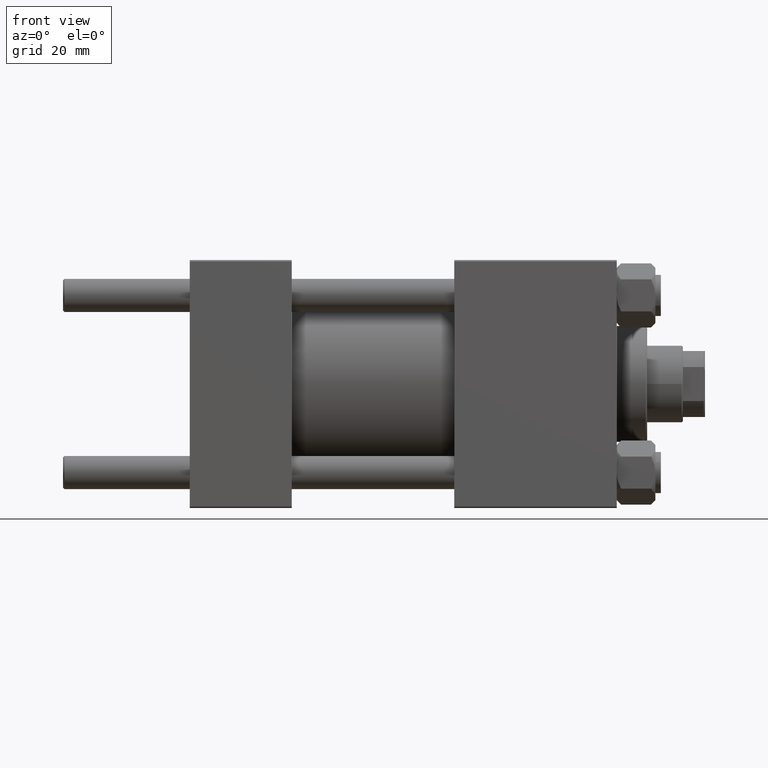
[diagram: clean part render]
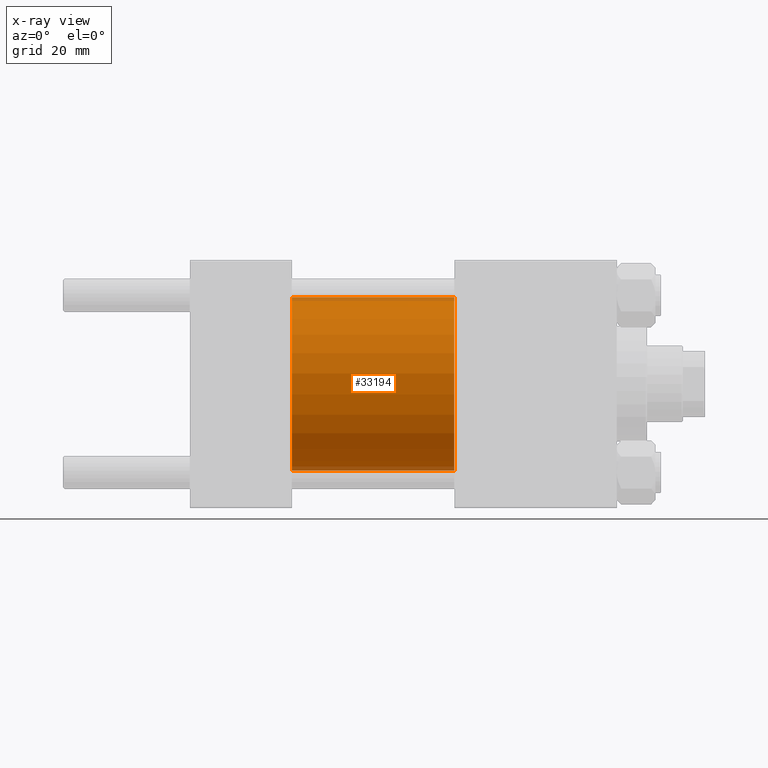
[diagram: x-ray — body ghosted, one internal face saturated and labeled with its STEP entity id]
A machine part, front view, then the same camera in x-ray: the body is ghosted and one INTERNAL B-rep face — a face not visible from any outside direction — is saturated and labeled: STEP entity #33194.
In plain terms, the highlighted cylindrical surface (partial cylindrical patch) has radius 31.5 mm, axis along (-1, -0, -0).
Its self-contained STEP definition (entity closure, byte-faithful):
#318 = CIRCLE ( 'NONE', #28448, 31.50000000000000000 ) ;
#2319 = DIRECTION ( 'NONE',  ( 1.000000000000000000, 0.000000000000000000, 0.000000000000000000 ) ) ;
#2745 = ORIENTED_EDGE ( 'NONE', *, *, #27034, .T. ) ;
#2936 = DIRECTION ( 'NONE',  ( 0.000000000000000000, 0.000000000000000000, 1.000000000000000000 ) ) ;
#5404 = CARTESIAN_POINT ( 'NONE',  ( 96.00000000000000000, 0.000000000000000000, 0.000000000000000000 ) ) ;
#5788 = DIRECTION ( 'NONE',  ( -1.000000000000000000, -0.000000000000000000, -0.000000000000000000 ) ) ;
#8429 = AXIS2_PLACEMENT_3D ( 'NONE', #45725, #41455, #2936 ) ;
#10859 = EDGE_CURVE ( 'NONE', #29247, #48526, #16403, .T. ) ;
#11230 = FACE_OUTER_BOUND ( 'NONE', #29845, .T. ) ;
#13261 = CIRCLE ( 'NONE', #20463, 31.50000000000000000 ) ;
#16012 = CARTESIAN_POINT ( 'NONE',  ( 96.00000000000000000, 3.857637417314162689E-15, -31.50000000000000000 ) ) ;
#16403 = LINE ( 'NONE', #39315, #49767 ) ;
#16733 = DIRECTION ( 'NONE',  ( 0.000000000000000000, 0.000000000000000000, -1.000000000000000000 ) ) ;
#16832 = EDGE_CURVE ( 'NONE', #18780, #27613, #24666, .T. ) ;
#18661 = DIRECTION ( 'NONE',  ( 0.000000000000000000, 0.000000000000000000, -1.000000000000000000 ) ) ;
#18780 = VERTEX_POINT ( 'NONE', #43480 ) ;
#20463 = AXIS2_PLACEMENT_3D ( 'NONE', #48383, #2319, #18661 ) ;
#20493 = DIRECTION ( 'NONE',  ( 1.000000000000000000, 0.000000000000000000, 0.000000000000000000 ) ) ;
#21838 = ORIENTED_EDGE ( 'NONE', *, *, #10859, .T. ) ;
#22551 = CYLINDRICAL_SURFACE ( 'NONE', #8429, 31.50000000000000000 ) ;
#24666 = LINE ( 'NONE', #32974, #26549 ) ;
#26549 = VECTOR ( 'NONE', #5788, 1000.000000000000000 ) ;
#27034 = EDGE_CURVE ( 'NONE', #18780, #29247, #318, .T. ) ;
#27613 = VERTEX_POINT ( 'NONE', #43556 ) ;
#27985 = DIRECTION ( 'NONE',  ( -1.000000000000000000, -0.000000000000000000, -0.000000000000000000 ) ) ;
#28366 = EDGE_CURVE ( 'NONE', #27613, #48526, #13261, .T. ) ;
#28448 = AXIS2_PLACEMENT_3D ( 'NONE', #5404, #20493, #16733 ) ;
#29247 = VERTEX_POINT ( 'NONE', #16012 ) ;
#29845 = EDGE_LOOP ( 'NONE', ( #2745, #21838, #33852, #48306 ) ) ;
#32974 = CARTESIAN_POINT ( 'NONE',  ( 96.00000000000000000, 0.000000000000000000, 31.50000000000000000 ) ) ;
#33194 = ADVANCED_FACE ( 'NONE', ( #11230 ), #22551, .F. ) ;
#33852 = ORIENTED_EDGE ( 'NONE', *, *, #28366, .F. ) ;
#39315 = CARTESIAN_POINT ( 'NONE',  ( 96.00000000000000000, 3.857637417314162689E-15, -31.50000000000000000 ) ) ;
#41455 = DIRECTION ( 'NONE',  ( -1.000000000000000000, -0.000000000000000000, -0.000000000000000000 ) ) ;
#43480 = CARTESIAN_POINT ( 'NONE',  ( 96.00000000000000000, 0.000000000000000000, 31.50000000000000000 ) ) ;
#43556 = CARTESIAN_POINT ( 'NONE',  ( 37.00000000000000000, 0.000000000000000000, 31.50000000000000000 ) ) ;
#45119 = CARTESIAN_POINT ( 'NONE',  ( 37.00000000000000000, 3.857637417314162689E-15, -31.50000000000000000 ) ) ;
#45725 = CARTESIAN_POINT ( 'NONE',  ( 96.00000000000000000, 0.000000000000000000, 0.000000000000000000 ) ) ;
#48306 = ORIENTED_EDGE ( 'NONE', *, *, #16832, .F. ) ;
#48383 = CARTESIAN_POINT ( 'NONE',  ( 37.00000000000000000, 0.000000000000000000, 0.000000000000000000 ) ) ;
#48526 = VERTEX_POINT ( 'NONE', #45119 ) ;
#49767 = VECTOR ( 'NONE', #27985, 1000.000000000000000 ) ;